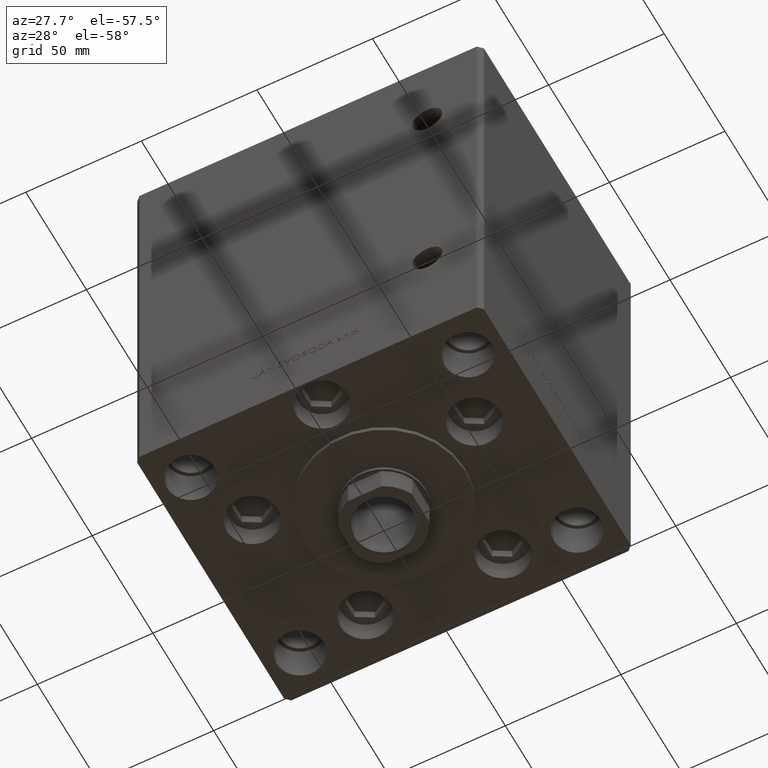
[diagram: clean part render]
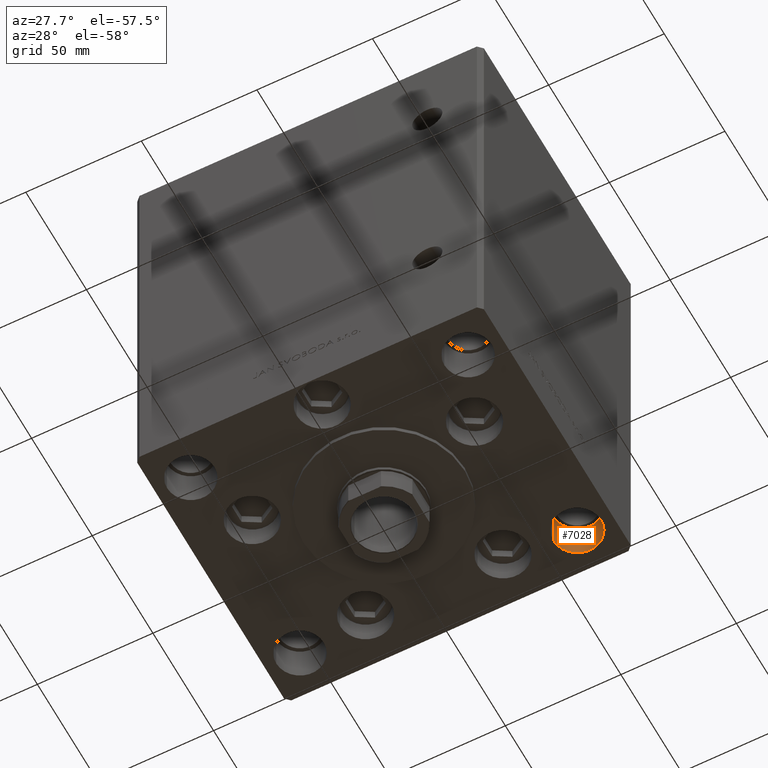
[diagram: same view with one face highlighted and labeled with its STEP entity id]
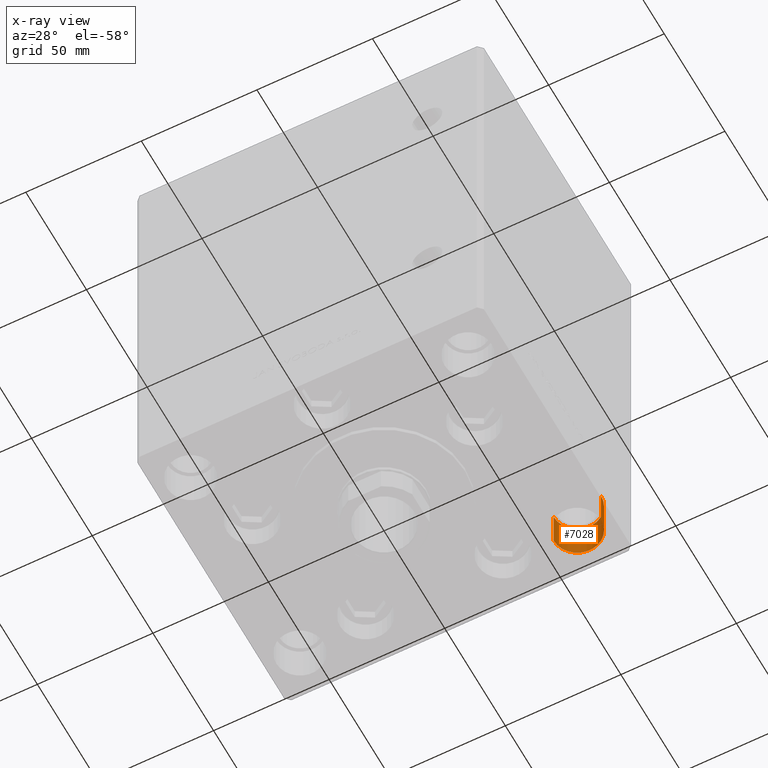
[diagram: x-ray of the same camera — body ghosted, the highlighted face saturated]
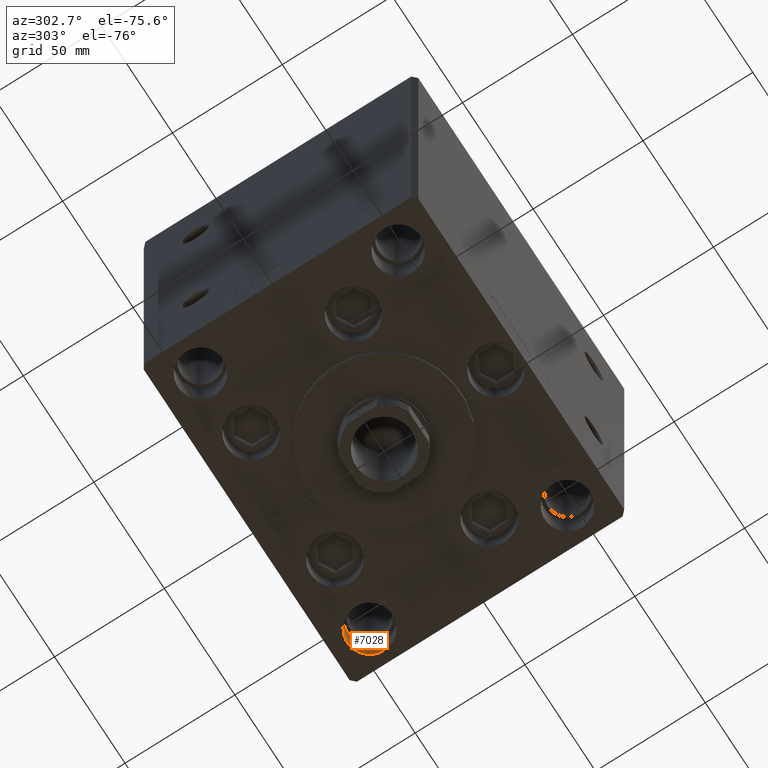
[diagram: same view with one face highlighted and labeled with its STEP entity id]
A machine part, auxiliary view. The second image highlights one B-rep face of the part: STEP entity #7028.
The next image is the same camera in x-ray: the body ghosted, the highlighted face saturated — about 0% of this face is hidden behind the body in this view.
A second angle (auxiliary view) of the same face is appended — the face is thin or edge-on in the first view.
In plain terms, the highlighted cylindrical surface (edge-blend (fillet) strip) has radius 10.25 mm, axis along (0, 0, -1).
Its self-contained STEP definition (entity closure, byte-faithful):
#733 = AXIS2_PLACEMENT_3D ( 'NONE', #37106, #2262, #24413 ) ;
#2262 = DIRECTION ( 'NONE',  ( -0.000000000000000000, -0.000000000000000000, 1.000000000000000000 ) ) ;
#4111 = CARTESIAN_POINT ( 'NONE',  ( -49.74999999999999289, 45.00000000000000711, -17.00000000000000000 ) ) ;
#4536 = VECTOR ( 'NONE', #6464, 1000.000000000000000 ) ;
#6464 = DIRECTION ( 'NONE',  ( -0.000000000000000000, -0.000000000000000000, 1.000000000000000000 ) ) ;
#6967 = CIRCLE ( 'NONE', #16720, 10.25000000000000178 ) ;
#7028 = ADVANCED_FACE ( 'NONE', ( #21598 ), #36119, .F. ) ;
#9684 = DIRECTION ( 'NONE',  ( 1.000000000000000000, 0.000000000000000000, 0.000000000000000000 ) ) ;
#11725 = EDGE_CURVE ( 'NONE', #24885, #44166, #36645, .T. ) ;
#14366 = LINE ( 'NONE', #41317, #4536 ) ;
#16720 = AXIS2_PLACEMENT_3D ( 'NONE', #32395, #41448, #37394 ) ;
#20031 = ORIENTED_EDGE ( 'NONE', *, *, #11725, .F. ) ;
#21598 = FACE_OUTER_BOUND ( 'NONE', #39674, .T. ) ;
#21657 = CARTESIAN_POINT ( 'NONE',  ( -70.25000000000000000, 45.00000000000000711, -17.00000000000000000 ) ) ;
#22744 = EDGE_CURVE ( 'NONE', #44166, #28097, #14366, .T. ) ;
#22845 = DIRECTION ( 'NONE',  ( -0.000000000000000000, -0.000000000000000000, 1.000000000000000000 ) ) ;
#22907 = EDGE_CURVE ( 'NONE', #39894, #28097, #6967, .T. ) ;
#23672 = ORIENTED_EDGE ( 'NONE', *, *, #46251, .T. ) ;
#24413 = DIRECTION ( 'NONE',  ( 1.000000000000000000, 0.000000000000000000, 0.000000000000000000 ) ) ;
#24754 = CARTESIAN_POINT ( 'NONE',  ( -70.25000000000000000, 45.00000000000000711, 0.000000000000000000 ) ) ;
#24885 = VERTEX_POINT ( 'NONE', #4111 ) ;
#27426 = VECTOR ( 'NONE', #22845, 1000.000000000000000 ) ;
#28097 = VERTEX_POINT ( 'NONE', #24754 ) ;
#29003 = CARTESIAN_POINT ( 'NONE',  ( -60.00000000000000000, 45.00000000000000711, -17.00000000000000000 ) ) ;
#29767 = CARTESIAN_POINT ( 'NONE',  ( -49.74999999999999289, 45.00000000000000711, 0.000000000000000000 ) ) ;
#30469 = CARTESIAN_POINT ( 'NONE',  ( -49.74999999999999289, 45.00000000000000711, -17.00000000000000000 ) ) ;
#32395 = CARTESIAN_POINT ( 'NONE',  ( -60.00000000000000000, 45.00000000000000711, 0.000000000000000000 ) ) ;
#33998 = ORIENTED_EDGE ( 'NONE', *, *, #22744, .F. ) ;
#36119 = CYLINDRICAL_SURFACE ( 'NONE', #733, 10.25000000000000178 ) ;
#36645 = CIRCLE ( 'NONE', #44726, 10.25000000000000178 ) ;
#37106 = CARTESIAN_POINT ( 'NONE',  ( -60.00000000000000000, 45.00000000000000711, -17.00000000000000000 ) ) ;
#37394 = DIRECTION ( 'NONE',  ( 1.000000000000000000, 0.000000000000000000, 0.000000000000000000 ) ) ;
#39674 = EDGE_LOOP ( 'NONE', ( #33998, #20031, #23672, #41709 ) ) ;
#39894 = VERTEX_POINT ( 'NONE', #29767 ) ;
#41317 = CARTESIAN_POINT ( 'NONE',  ( -70.25000000000000000, 45.00000000000000711, -17.00000000000000000 ) ) ;
#41448 = DIRECTION ( 'NONE',  ( 0.000000000000000000, 0.000000000000000000, 1.000000000000000000 ) ) ;
#41709 = ORIENTED_EDGE ( 'NONE', *, *, #22907, .T. ) ;
#44166 = VERTEX_POINT ( 'NONE', #21657 ) ;
#44726 = AXIS2_PLACEMENT_3D ( 'NONE', #29003, #45266, #9684 ) ;
#45266 = DIRECTION ( 'NONE',  ( 0.000000000000000000, 0.000000000000000000, 1.000000000000000000 ) ) ;
#45478 = LINE ( 'NONE', #30469, #27426 ) ;
#46251 = EDGE_CURVE ( 'NONE', #24885, #39894, #45478, .T. ) ;